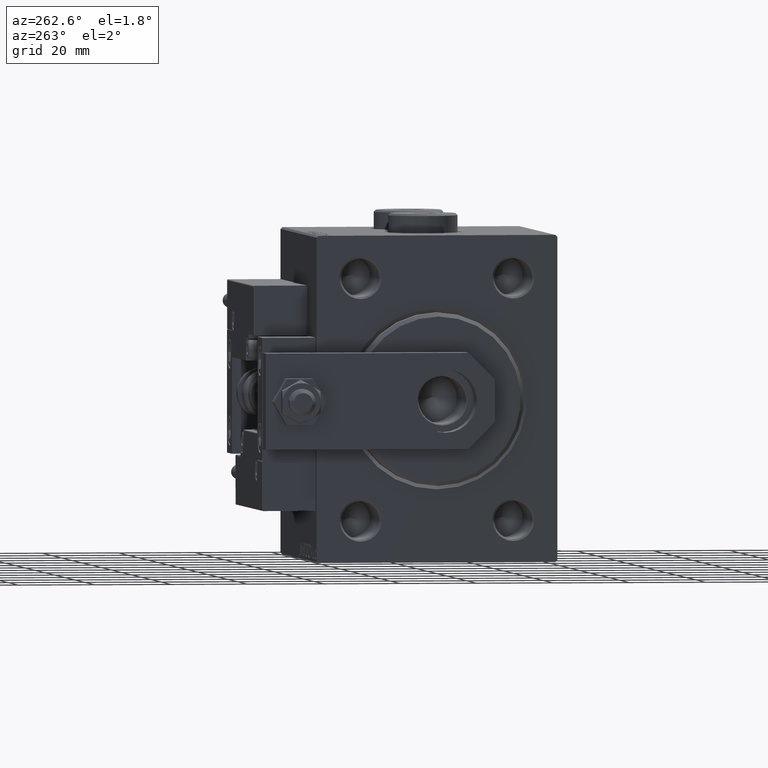
[diagram: clean part render]
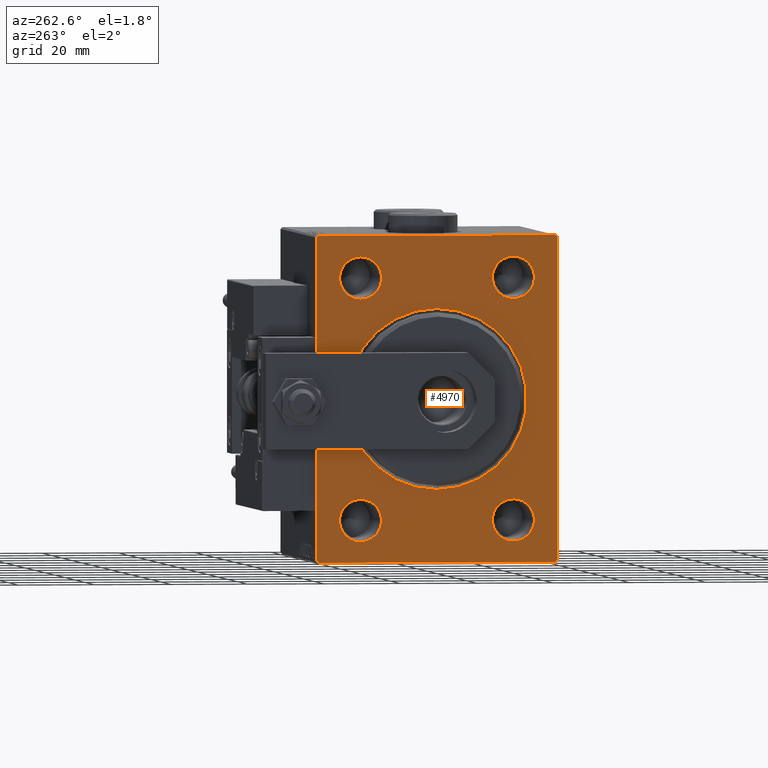
[diagram: same view with one face highlighted and labeled with its STEP entity id]
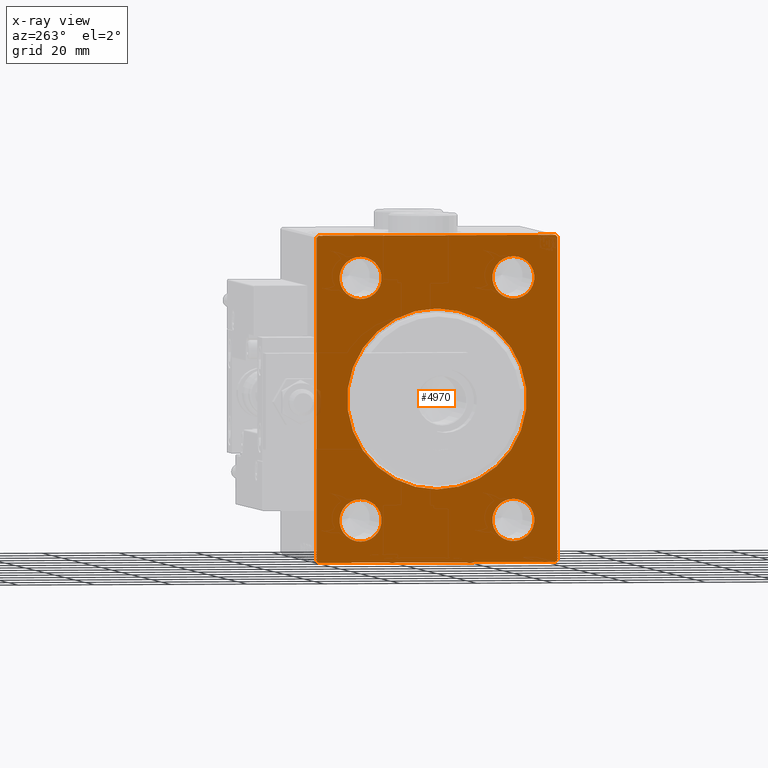
[diagram: x-ray of the same camera — body ghosted, the highlighted face saturated]
A machine part, auxiliary view. The second image highlights one B-rep face of the part: STEP entity #4970.
The next image is the same camera in x-ray: the body ghosted, the highlighted face saturated — about 0% of this face is hidden behind the body in this view.
In plain terms, the highlighted planar face has unit normal (1, 0, 0).
Its self-contained STEP definition (entity closure, byte-faithful):
#54 = DIRECTION ( 'NONE',  ( 0.000000000000000000, 0.000000000000000000, -1.000000000000000000 ) ) ;
#277 = AXIS2_PLACEMENT_3D ( 'NONE', #41045, #4742, #14491 ) ;
#511 = DIRECTION ( 'NONE',  ( 0.000000000000000000, 0.000000000000000000, -1.000000000000000000 ) ) ;
#554 = LINE ( 'NONE', #7461, #43500 ) ;
#838 = DIRECTION ( 'NONE',  ( 1.000000000000000000, 0.000000000000000000, 0.000000000000000000 ) ) ;
#873 = ORIENTED_EDGE ( 'NONE', *, *, #4557, .T. ) ;
#1050 = DIRECTION ( 'NONE',  ( 0.000000000000000000, 0.000000000000000000, -1.000000000000000000 ) ) ;
#1111 = CARTESIAN_POINT ( 'NONE',  ( 0.000000000000000000, -20.00000000000000355, -25.99999999999999645 ) ) ;
#1112 = AXIS2_PLACEMENT_3D ( 'NONE', #44288, #838, #54 ) ;
#1274 = LINE ( 'NONE', #8957, #23387 ) ;
#1413 = AXIS2_PLACEMENT_3D ( 'NONE', #15642, #27840, #32583 ) ;
#1525 = ORIENTED_EDGE ( 'NONE', *, *, #12296, .T. ) ;
#1798 = DIRECTION ( 'NONE',  ( 1.000000000000000000, 0.000000000000000000, 0.000000000000000000 ) ) ;
#2464 = CARTESIAN_POINT ( 'NONE',  ( 0.000000000000000000, 2.877919977996283870E-15, -23.50000000000003197 ) ) ;
#2566 = VERTEX_POINT ( 'NONE', #15585 ) ;
#2919 = LINE ( 'NONE', #15077, #8741 ) ;
#4221 = VERTEX_POINT ( 'NONE', #20215 ) ;
#4227 = VERTEX_POINT ( 'NONE', #23939 ) ;
#4557 = EDGE_CURVE ( 'NONE', #50132, #34615, #42593, .T. ) ;
#4710 = EDGE_CURVE ( 'NONE', #34820, #27106, #2919, .T. ) ;
#4742 = DIRECTION ( 'NONE',  ( 1.000000000000000000, 0.000000000000000000, 0.000000000000000000 ) ) ;
#4970 = ADVANCED_FACE ( 'NONE', ( #24860, #49773, #9759, #25910, #5787, #13449 ), #50298, .F. ) ;
#5617 = VERTEX_POINT ( 'NONE', #1111 ) ;
#5787 = FACE_BOUND ( 'NONE', #23050, .T. ) ;
#6188 = EDGE_CURVE ( 'NONE', #28143, #31803, #12349, .T. ) ;
#6438 = VECTOR ( 'NONE', #8415, 1000.000000000000000 ) ;
#6598 = AXIS2_PLACEMENT_3D ( 'NONE', #32372, #33362, #38138 ) ;
#6712 = CARTESIAN_POINT ( 'NONE',  ( 0.000000000000000000, -31.50000000000000000, 41.99999999999998579 ) ) ;
#7461 = CARTESIAN_POINT ( 'NONE',  ( 0.000000000000000000, -31.50000000000000000, -42.50000000000000711 ) ) ;
#7967 = CIRCLE ( 'NONE', #31652, 5.500000000000005329 ) ;
#8279 = CARTESIAN_POINT ( 'NONE',  ( 0.000000000000000000, 31.00000000000000000, 42.49999999999999289 ) ) ;
#8314 = ORIENTED_EDGE ( 'NONE', *, *, #39266, .T. ) ;
#8415 = DIRECTION ( 'NONE',  ( 0.000000000000000000, -1.000000000000000000, -1.101411730778925171E-16 ) ) ;
#8436 = DIRECTION ( 'NONE',  ( 0.000000000000000000, 0.000000000000000000, -1.000000000000000000 ) ) ;
#8741 = VECTOR ( 'NONE', #42677, 1000.000000000000114 ) ;
#8940 = EDGE_CURVE ( 'NONE', #32507, #31803, #554, .T. ) ;
#8957 = CARTESIAN_POINT ( 'NONE',  ( 0.000000000000000000, -31.50000000000000000, 42.49999999999998579 ) ) ;
#9230 = DIRECTION ( 'NONE',  ( 1.000000000000000000, 0.000000000000000000, 0.000000000000000000 ) ) ;
#9759 = FACE_BOUND ( 'NONE', #18442, .T. ) ;
#10060 = VERTEX_POINT ( 'NONE', #20457 ) ;
#10490 = VECTOR ( 'NONE', #48110, 1000.000000000000000 ) ;
#11183 = VERTEX_POINT ( 'NONE', #2464 ) ;
#11245 = CARTESIAN_POINT ( 'NONE',  ( 0.000000000000000000, 31.00000000000001421, -42.50000000000000711 ) ) ;
#11833 = CARTESIAN_POINT ( 'NONE',  ( 0.000000000000000000, 31.50000000000001421, -42.00000000000000711 ) ) ;
#12284 = CARTESIAN_POINT ( 'NONE',  ( 0.000000000000000000, 19.99999999999999645, 37.00000000000000711 ) ) ;
#12296 = EDGE_CURVE ( 'NONE', #46295, #4227, #46146, .T. ) ;
#12349 = LINE ( 'NONE', #11833, #23879 ) ;
#13227 = DIRECTION ( 'NONE',  ( -0.000000000000000000, -0.7071067811865425767, 0.7071067811865525687 ) ) ;
#13342 = EDGE_CURVE ( 'NONE', #34820, #38801, #48674, .T. ) ;
#13449 = FACE_OUTER_BOUND ( 'NONE', #51808, .T. ) ;
#13709 = CARTESIAN_POINT ( 'NONE',  ( 0.000000000000000000, -20.00000000000000355, 25.99999999999999645 ) ) ;
#13882 = ORIENTED_EDGE ( 'NONE', *, *, #39371, .T. ) ;
#14098 = ORIENTED_EDGE ( 'NONE', *, *, #28769, .T. ) ;
#14158 = CARTESIAN_POINT ( 'NONE',  ( 0.000000000000000000, 19.99999999999999645, -25.99999999999999645 ) ) ;
#14491 = DIRECTION ( 'NONE',  ( 0.000000000000000000, 0.000000000000000000, -1.000000000000000000 ) ) ;
#15077 = CARTESIAN_POINT ( 'NONE',  ( 0.000000000000000000, 31.00000000000000000, 42.49999999999999289 ) ) ;
#15291 = EDGE_CURVE ( 'NONE', #4221, #5617, #42035, .T. ) ;
#15514 = VERTEX_POINT ( 'NONE', #22233 ) ;
#15585 = CARTESIAN_POINT ( 'NONE',  ( 0.000000000000000000, 0.000000000000000000, 23.50000000000003197 ) ) ;
#15642 = CARTESIAN_POINT ( 'NONE',  ( 0.000000000000000000, -20.00000000000000355, -31.50000000000000000 ) ) ;
#15659 = EDGE_CURVE ( 'NONE', #32291, #15514, #1274, .T. ) ;
#15688 = VECTOR ( 'NONE', #39032, 1000.000000000000114 ) ;
#15822 = CARTESIAN_POINT ( 'NONE',  ( 0.000000000000000000, -31.50000000000000000, 41.99999999999998579 ) ) ;
#16213 = CARTESIAN_POINT ( 'NONE',  ( 0.000000000000000000, -31.00000000000000000, -42.50000000000000711 ) ) ;
#16390 = CARTESIAN_POINT ( 'NONE',  ( 0.000000000000000000, 0.000000000000000000, 0.000000000000000000 ) ) ;
#16839 = CARTESIAN_POINT ( 'NONE',  ( 0.000000000000000000, 19.99999999999999645, -31.50000000000000000 ) ) ;
#17140 = EDGE_CURVE ( 'NONE', #4227, #46295, #20048, .T. ) ;
#17809 = AXIS2_PLACEMENT_3D ( 'NONE', #31247, #50641, #50890 ) ;
#17927 = DIRECTION ( 'NONE',  ( 0.000000000000000000, 0.000000000000000000, -1.000000000000000000 ) ) ;
#18208 = AXIS2_PLACEMENT_3D ( 'NONE', #19037, #35229, #22510 ) ;
#18442 = EDGE_LOOP ( 'NONE', ( #21504, #873 ) ) ;
#19037 = CARTESIAN_POINT ( 'NONE',  ( 0.000000000000000000, 19.99999999999999645, 31.50000000000000000 ) ) ;
#19073 = ORIENTED_EDGE ( 'NONE', *, *, #6188, .T. ) ;
#19864 = DIRECTION ( 'NONE',  ( 0.000000000000000000, 1.000000000000000000, 0.000000000000000000 ) ) ;
#20048 = CIRCLE ( 'NONE', #49694, 5.500000000000005329 ) ;
#20049 = ORIENTED_EDGE ( 'NONE', *, *, #35045, .T. ) ;
#20215 = CARTESIAN_POINT ( 'NONE',  ( 0.000000000000000000, -20.00000000000000355, -37.00000000000000711 ) ) ;
#20245 = ORIENTED_EDGE ( 'NONE', *, *, #15291, .T. ) ;
#20457 = CARTESIAN_POINT ( 'NONE',  ( 0.000000000000000000, 19.99999999999999645, -37.00000000000000711 ) ) ;
#21504 = ORIENTED_EDGE ( 'NONE', *, *, #45635, .T. ) ;
#21878 = DIRECTION ( 'NONE',  ( 1.000000000000000000, 0.000000000000000000, 0.000000000000000000 ) ) ;
#21965 = LINE ( 'NONE', #16213, #28553 ) ;
#22022 = ORIENTED_EDGE ( 'NONE', *, *, #27508, .F. ) ;
#22233 = CARTESIAN_POINT ( 'NONE',  ( 0.000000000000000000, -31.50000000000000000, -42.00000000000000000 ) ) ;
#22510 = DIRECTION ( 'NONE',  ( 0.000000000000000000, 0.000000000000000000, -1.000000000000000000 ) ) ;
#22808 = EDGE_LOOP ( 'NONE', ( #1525, #33876 ) ) ;
#23050 = EDGE_LOOP ( 'NONE', ( #14098, #24539 ) ) ;
#23387 = VECTOR ( 'NONE', #8436, 1000.000000000000000 ) ;
#23879 = VECTOR ( 'NONE', #40718, 1000.000000000000114 ) ;
#23939 = CARTESIAN_POINT ( 'NONE',  ( 0.000000000000000000, 19.99999999999999645, 25.99999999999999645 ) ) ;
#24109 = EDGE_LOOP ( 'NONE', ( #20049, #13882 ) ) ;
#24152 = EDGE_CURVE ( 'NONE', #5617, #4221, #38090, .T. ) ;
#24539 = ORIENTED_EDGE ( 'NONE', *, *, #46061, .T. ) ;
#24860 = FACE_BOUND ( 'NONE', #24109, .T. ) ;
#25910 = FACE_BOUND ( 'NONE', #22808, .T. ) ;
#27038 = AXIS2_PLACEMENT_3D ( 'NONE', #16839, #21878, #45740 ) ;
#27106 = VERTEX_POINT ( 'NONE', #38469 ) ;
#27387 = ORIENTED_EDGE ( 'NONE', *, *, #24152, .T. ) ;
#27508 = EDGE_CURVE ( 'NONE', #28143, #27106, #48357, .T. ) ;
#27693 = VERTEX_POINT ( 'NONE', #14158 ) ;
#27840 = DIRECTION ( 'NONE',  ( 1.000000000000000000, 0.000000000000000000, 0.000000000000000000 ) ) ;
#27913 = AXIS2_PLACEMENT_3D ( 'NONE', #44766, #49522, #1050 ) ;
#28143 = VERTEX_POINT ( 'NONE', #36317 ) ;
#28534 = CARTESIAN_POINT ( 'NONE',  ( 0.000000000000000000, 31.50000000000000000, 42.49999999999999289 ) ) ;
#28553 = VECTOR ( 'NONE', #13227, 999.9999999999998863 ) ;
#28695 = CIRCLE ( 'NONE', #27038, 5.500000000000005329 ) ;
#28769 = EDGE_CURVE ( 'NONE', #27693, #10060, #7967, .T. ) ;
#31071 = EDGE_LOOP ( 'NONE', ( #27387, #20245 ) ) ;
#31247 = CARTESIAN_POINT ( 'NONE',  ( 0.000000000000000000, -20.00000000000000355, 31.50000000000000000 ) ) ;
#31652 = AXIS2_PLACEMENT_3D ( 'NONE', #50011, #1798, #17927 ) ;
#31717 = ORIENTED_EDGE ( 'NONE', *, *, #13342, .F. ) ;
#31796 = AXIS2_PLACEMENT_3D ( 'NONE', #16390, #52189, #48734 ) ;
#31803 = VERTEX_POINT ( 'NONE', #11245 ) ;
#32092 = LINE ( 'NONE', #6712, #15688 ) ;
#32291 = VERTEX_POINT ( 'NONE', #15822 ) ;
#32372 = CARTESIAN_POINT ( 'NONE',  ( 0.000000000000000000, 0.000000000000000000, 0.000000000000000000 ) ) ;
#32507 = VERTEX_POINT ( 'NONE', #38320 ) ;
#32583 = DIRECTION ( 'NONE',  ( 0.000000000000000000, 0.000000000000000000, -1.000000000000000000 ) ) ;
#33362 = DIRECTION ( 'NONE',  ( 1.000000000000000000, 0.000000000000000000, 0.000000000000000000 ) ) ;
#33876 = ORIENTED_EDGE ( 'NONE', *, *, #17140, .T. ) ;
#34615 = VERTEX_POINT ( 'NONE', #49913 ) ;
#34748 = EDGE_CURVE ( 'NONE', #32291, #38801, #32092, .T. ) ;
#34820 = VERTEX_POINT ( 'NONE', #8279 ) ;
#35045 = EDGE_CURVE ( 'NONE', #2566, #11183, #49521, .T. ) ;
#35079 = ORIENTED_EDGE ( 'NONE', *, *, #34748, .T. ) ;
#35229 = DIRECTION ( 'NONE',  ( 1.000000000000000000, 0.000000000000000000, 0.000000000000000000 ) ) ;
#35925 = CARTESIAN_POINT ( 'NONE',  ( 0.000000000000000000, 31.50000000000001421, -42.50000000000000711 ) ) ;
#36317 = CARTESIAN_POINT ( 'NONE',  ( 0.000000000000000000, 31.50000000000001421, -42.00000000000000711 ) ) ;
#37836 = CARTESIAN_POINT ( 'NONE',  ( 0.000000000000000000, 19.99999999999999645, 31.50000000000000000 ) ) ;
#38090 = CIRCLE ( 'NONE', #27913, 5.500000000000005329 ) ;
#38138 = DIRECTION ( 'NONE',  ( 0.000000000000000000, 0.000000000000000000, -1.000000000000000000 ) ) ;
#38320 = CARTESIAN_POINT ( 'NONE',  ( 0.000000000000000000, -31.00000000000000000, -42.50000000000000711 ) ) ;
#38469 = CARTESIAN_POINT ( 'NONE',  ( 0.000000000000000000, 31.50000000000000000, 41.99999999999999289 ) ) ;
#38801 = VERTEX_POINT ( 'NONE', #40129 ) ;
#39032 = DIRECTION ( 'NONE',  ( -0.000000000000000000, 0.7071067811865474617, 0.7071067811865474617 ) ) ;
#39266 = EDGE_CURVE ( 'NONE', #32507, #15514, #21965, .T. ) ;
#39371 = EDGE_CURVE ( 'NONE', #11183, #2566, #45511, .T. ) ;
#39806 = CIRCLE ( 'NONE', #17809, 5.500000000000005329 ) ;
#40129 = CARTESIAN_POINT ( 'NONE',  ( 0.000000000000000000, -31.00000000000000000, 42.49999999999998579 ) ) ;
#40718 = DIRECTION ( 'NONE',  ( 0.000000000000000000, -0.7071067811865474617, -0.7071067811865474617 ) ) ;
#41045 = CARTESIAN_POINT ( 'NONE',  ( 0.000000000000000000, 0.000000000000000000, 0.000000000000000000 ) ) ;
#42035 = CIRCLE ( 'NONE', #1413, 5.500000000000005329 ) ;
#42593 = CIRCLE ( 'NONE', #1112, 5.500000000000005329 ) ;
#42677 = DIRECTION ( 'NONE',  ( -0.000000000000000000, 0.7071067811865474617, -0.7071067811865474617 ) ) ;
#43500 = VECTOR ( 'NONE', #19864, 1000.000000000000000 ) ;
#44288 = CARTESIAN_POINT ( 'NONE',  ( 0.000000000000000000, -20.00000000000000355, 31.50000000000000000 ) ) ;
#44628 = ORIENTED_EDGE ( 'NONE', *, *, #8940, .F. ) ;
#44766 = CARTESIAN_POINT ( 'NONE',  ( 0.000000000000000000, -20.00000000000000355, -31.50000000000000000 ) ) ;
#45511 = CIRCLE ( 'NONE', #6598, 23.50000000000003197 ) ;
#45635 = EDGE_CURVE ( 'NONE', #34615, #50132, #39806, .T. ) ;
#45740 = DIRECTION ( 'NONE',  ( 0.000000000000000000, 0.000000000000000000, -1.000000000000000000 ) ) ;
#46061 = EDGE_CURVE ( 'NONE', #10060, #27693, #28695, .T. ) ;
#46105 = ORIENTED_EDGE ( 'NONE', *, *, #4710, .T. ) ;
#46146 = CIRCLE ( 'NONE', #18208, 5.500000000000005329 ) ;
#46295 = VERTEX_POINT ( 'NONE', #12284 ) ;
#46544 = ORIENTED_EDGE ( 'NONE', *, *, #15659, .F. ) ;
#48110 = DIRECTION ( 'NONE',  ( 0.000000000000000000, -1.632680918566406547E-16, 1.000000000000000000 ) ) ;
#48357 = LINE ( 'NONE', #35925, #10490 ) ;
#48674 = LINE ( 'NONE', #28534, #6438 ) ;
#48734 = DIRECTION ( 'NONE',  ( 0.000000000000000000, 0.000000000000000000, -1.000000000000000000 ) ) ;
#49521 = CIRCLE ( 'NONE', #31796, 23.50000000000003197 ) ;
#49522 = DIRECTION ( 'NONE',  ( 1.000000000000000000, 0.000000000000000000, 0.000000000000000000 ) ) ;
#49694 = AXIS2_PLACEMENT_3D ( 'NONE', #37836, #9230, #511 ) ;
#49773 = FACE_BOUND ( 'NONE', #31071, .T. ) ;
#49913 = CARTESIAN_POINT ( 'NONE',  ( 0.000000000000000000, -20.00000000000000355, 37.00000000000000711 ) ) ;
#50011 = CARTESIAN_POINT ( 'NONE',  ( 0.000000000000000000, 19.99999999999999645, -31.50000000000000000 ) ) ;
#50132 = VERTEX_POINT ( 'NONE', #13709 ) ;
#50298 = PLANE ( 'NONE',  #277 ) ;
#50641 = DIRECTION ( 'NONE',  ( 1.000000000000000000, 0.000000000000000000, 0.000000000000000000 ) ) ;
#50890 = DIRECTION ( 'NONE',  ( 0.000000000000000000, 0.000000000000000000, -1.000000000000000000 ) ) ;
#51808 = EDGE_LOOP ( 'NONE', ( #46544, #35079, #31717, #46105, #22022, #19073, #44628, #8314 ) ) ;
#52189 = DIRECTION ( 'NONE',  ( 1.000000000000000000, 0.000000000000000000, 0.000000000000000000 ) ) ;